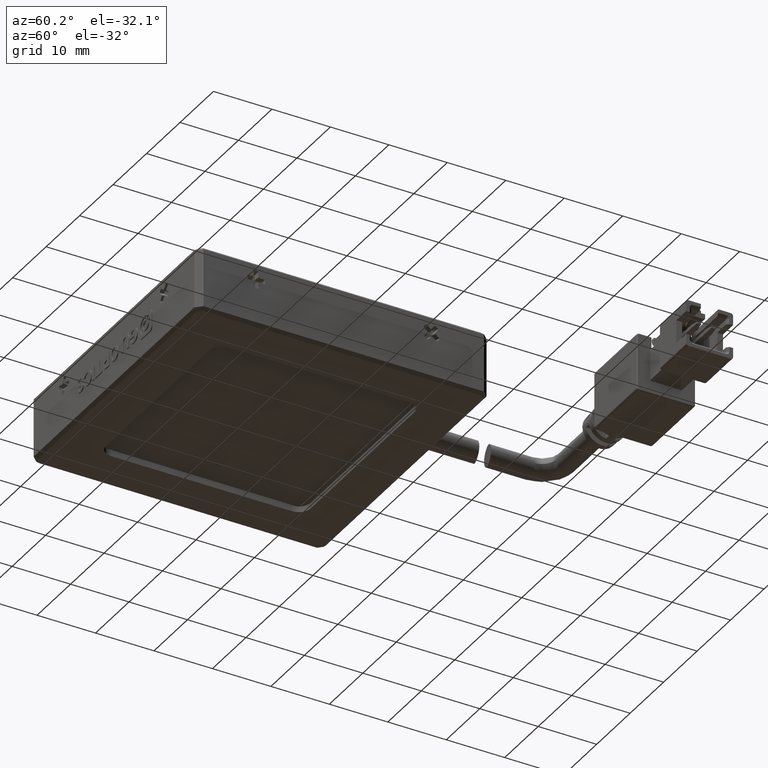
[diagram: clean part render]
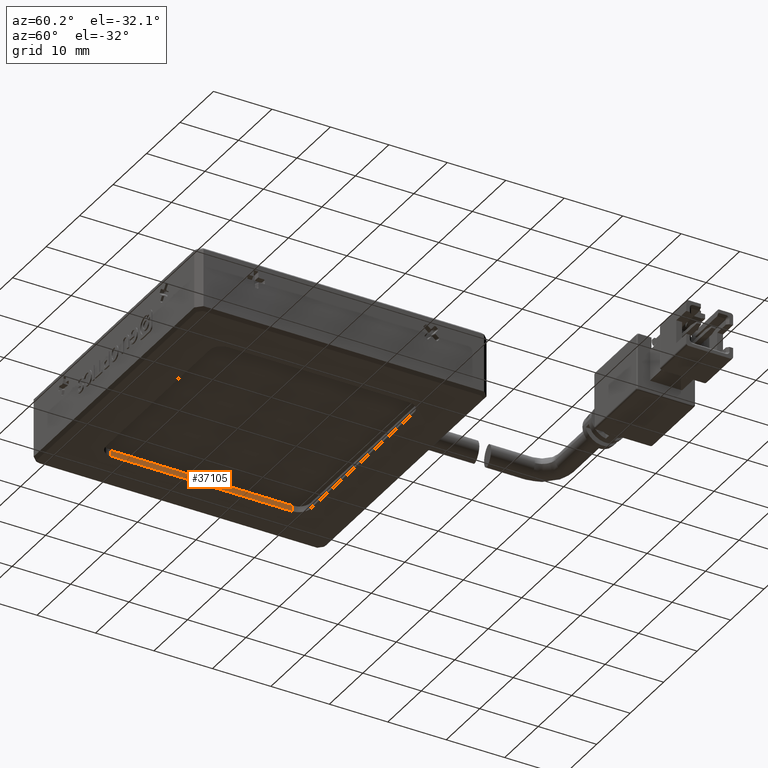
[diagram: same view with one face highlighted and labeled with its STEP entity id]
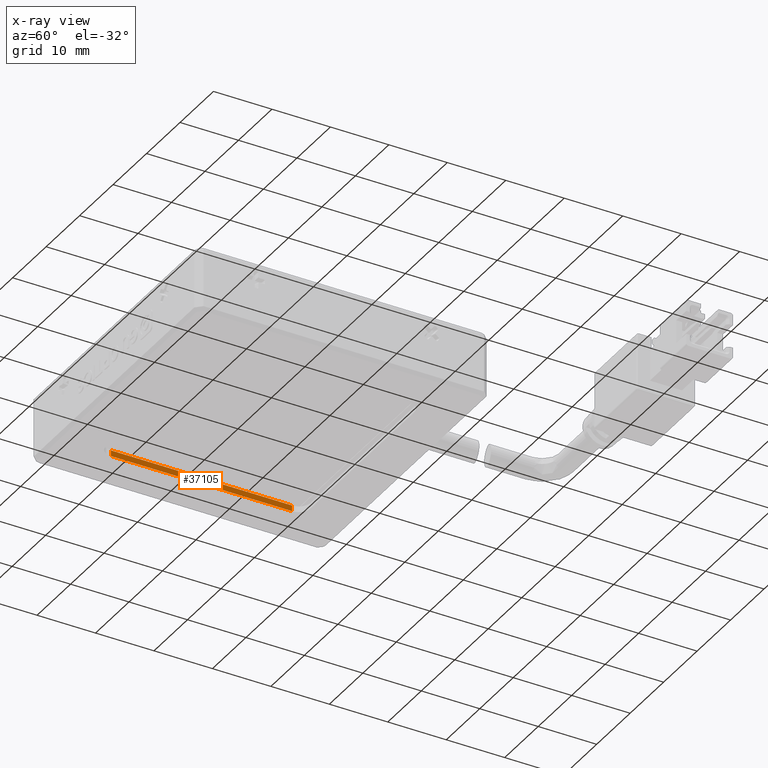
[diagram: x-ray of the same camera — body ghosted, the highlighted face saturated]
A machine part, auxiliary view. The second image highlights one B-rep face of the part: STEP entity #37105.
The next image is the same camera in x-ray: the body ghosted, the highlighted face saturated — about 0% of this face is hidden behind the body in this view.
In plain terms, the highlighted planar face has unit normal (-1, 0, 0).
Its self-contained STEP definition (entity closure, byte-faithful):
#884 = VECTOR ( 'NONE', #17946, 1000.000000000000000 ) ;
#2351 = VECTOR ( 'NONE', #27214, 1000.000000000000000 ) ;
#2655 = CARTESIAN_POINT ( 'NONE',  ( 1.767025316455714400, -1.288860759493677400, -8.750000000000000000 ) ) ;
#3974 = DIRECTION ( 'NONE',  ( -1.000000000000000000, 0.0000000000000000000, 0.0000000000000000000 ) ) ;
#7194 = EDGE_CURVE ( 'NONE', #18350, #17413, #34506, .T. ) ;
#9909 = LINE ( 'NONE', #20527, #2351 ) ;
#10334 = PLANE ( 'NONE',  #34139 ) ;
#11466 = ORIENTED_EDGE ( 'NONE', *, *, #14649, .F. ) ;
#14649 = EDGE_CURVE ( 'NONE', #23262, #18350, #9909, .T. ) ;
#15025 = EDGE_LOOP ( 'NONE', ( #34852, #41854, #22043, #11466 ) ) ;
#17004 = VECTOR ( 'NONE', #18948, 1000.000000000000000 ) ;
#17413 = VERTEX_POINT ( 'NONE', #18904 ) ;
#17946 = DIRECTION ( 'NONE',  ( -0.0000000000000000000, -0.0000000000000000000, -1.000000000000000000 ) ) ;
#18043 = LINE ( 'NONE', #41702, #17004 ) ;
#18350 = VERTEX_POINT ( 'NONE', #37295 ) ;
#18810 = CARTESIAN_POINT ( 'NONE',  ( 1.767025316455714400, -1.288860759493677400, -8.750999999999999400 ) ) ;
#18904 = CARTESIAN_POINT ( 'NONE',  ( 1.767025316455714400, 29.71113924050632300, -8.750000000000000000 ) ) ;
#18948 = DIRECTION ( 'NONE',  ( -0.0000000000000000000, -1.000000000000000000, -0.0000000000000000000 ) ) ;
#19717 = EDGE_CURVE ( 'NONE', #17413, #26697, #18043, .T. ) ;
#20527 = CARTESIAN_POINT ( 'NONE',  ( 1.767025316455714400, -3.288860759493677400, -7.750000000000000900 ) ) ;
#21965 = DIRECTION ( 'NONE',  ( 0.0000000000000000000, 0.0000000000000000000, -1.000000000000000000 ) ) ;
#22043 = ORIENTED_EDGE ( 'NONE', *, *, #7194, .F. ) ;
#22162 = LINE ( 'NONE', #18810, #39458 ) ;
#23262 = VERTEX_POINT ( 'NONE', #31412 ) ;
#23484 = CARTESIAN_POINT ( 'NONE',  ( 1.767025316455714400, -3.288860759493677400, -8.750999999999999400 ) ) ;
#26697 = VERTEX_POINT ( 'NONE', #2655 ) ;
#26759 = DIRECTION ( 'NONE',  ( 0.0000000000000000000, 0.0000000000000000000, 1.000000000000000000 ) ) ;
#27087 = EDGE_CURVE ( 'NONE', #23262, #26697, #22162, .T. ) ;
#27214 = DIRECTION ( 'NONE',  ( 0.0000000000000000000, 1.000000000000000000, -0.0000000000000000000 ) ) ;
#31412 = CARTESIAN_POINT ( 'NONE',  ( 1.767025316455714400, -1.288860759493677400, -7.750000000000000900 ) ) ;
#34139 = AXIS2_PLACEMENT_3D ( 'NONE', #23484, #3974, #26759 ) ;
#34506 = LINE ( 'NONE', #40737, #884 ) ;
#34852 = ORIENTED_EDGE ( 'NONE', *, *, #27087, .T. ) ;
#35283 = FACE_OUTER_BOUND ( 'NONE', #15025, .T. ) ;
#37105 = ADVANCED_FACE ( 'NONE', ( #35283 ), #10334, .F. ) ;
#37295 = CARTESIAN_POINT ( 'NONE',  ( 1.767025316455714400, 29.71113924050632300, -7.750000000000000900 ) ) ;
#39458 = VECTOR ( 'NONE', #21965, 1000.000000000000000 ) ;
#40737 = CARTESIAN_POINT ( 'NONE',  ( 1.767025316455714400, 29.71113924050632300, -8.750999999999999400 ) ) ;
#41702 = CARTESIAN_POINT ( 'NONE',  ( 1.767025316455714400, 14.21113924050632300, -8.750000000000000000 ) ) ;
#41854 = ORIENTED_EDGE ( 'NONE', *, *, #19717, .F. ) ;